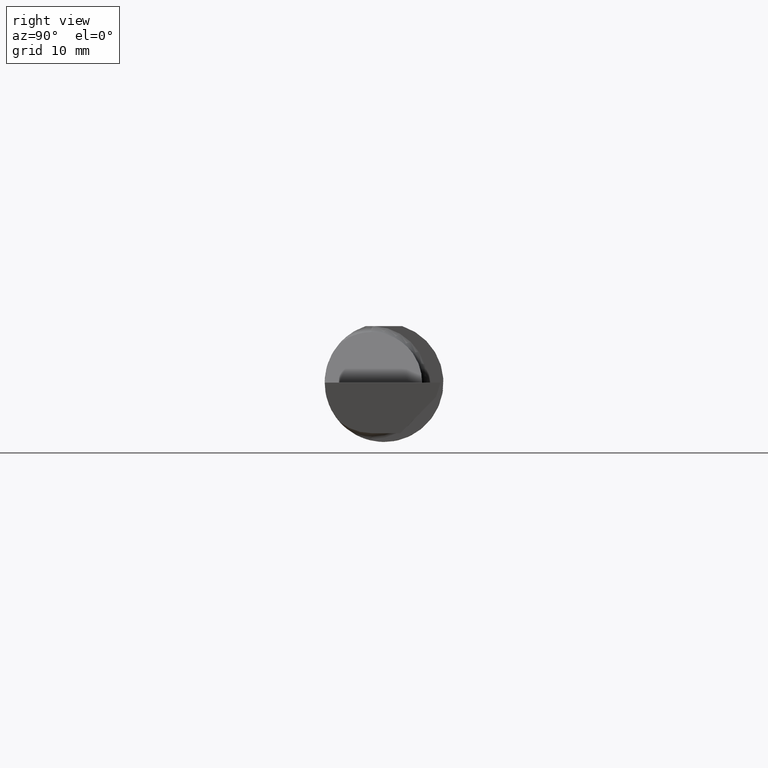
[diagram: clean part render]
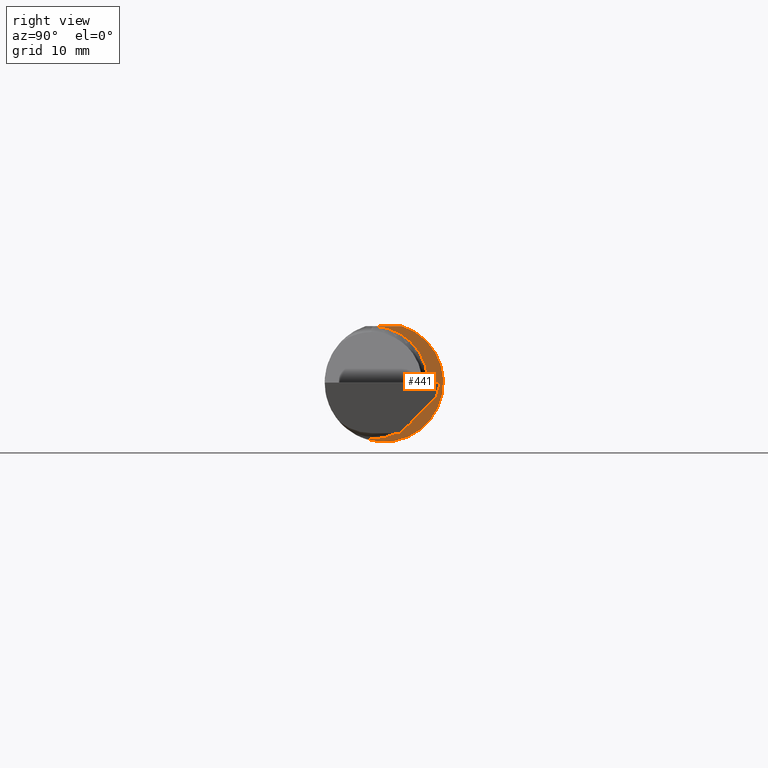
[diagram: same view with one face highlighted and labeled with its STEP entity id]
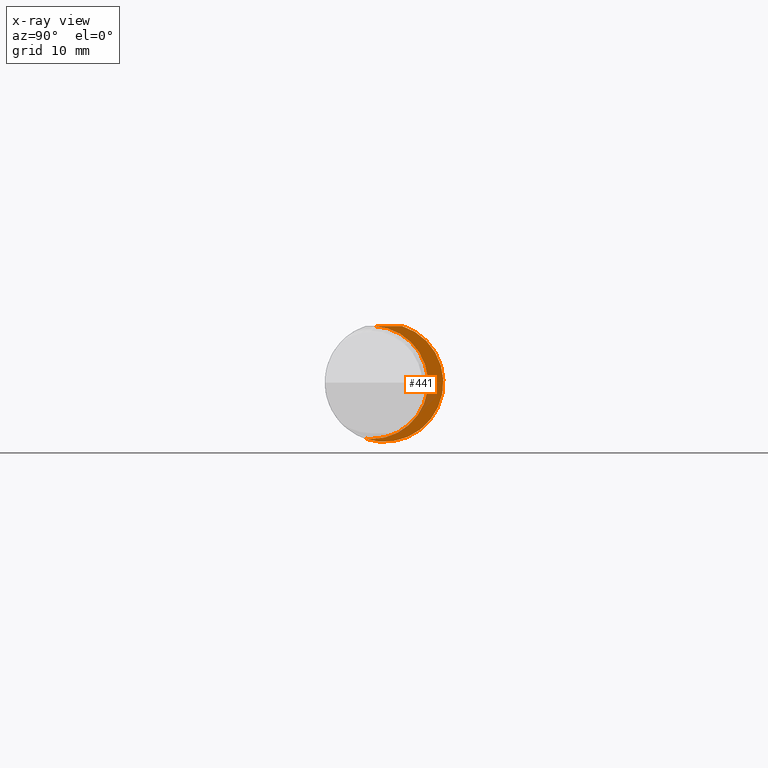
[diagram: x-ray of the same camera — body ghosted, the highlighted face saturated]
A machine part, right view. The second image highlights one B-rep face of the part: STEP entity #441.
The next image is the same camera in x-ray: the body ghosted, the highlighted face saturated — about 13% of this face is hidden behind the body in this view.
In plain terms, the highlighted planar face has unit normal (1, 0, 0).
Its self-contained STEP definition (entity closure, byte-faithful):
#7 = CARTESIAN_POINT ( 'NONE',  ( 2.200000000000000178, 0.07650098038587503646, 0.2378500000000000059 ) ) ;
#36 = CARTESIAN_POINT ( 'NONE',  ( 2.200000000000000178, 0.1851499999999999257, 0.0000000000000000000 ) ) ;
#41 = EDGE_CURVE ( 'NONE', #536, #362, #762, .T. ) ;
#47 = VECTOR ( 'NONE', #90, 39.37007874015748143 ) ;
#61 = CARTESIAN_POINT ( 'NONE',  ( 2.200000000000000178, -0.04105010460296977526, 0.2378500000000000059 ) ) ;
#63 = CIRCLE ( 'NONE', #76, 0.2381499999999999173 ) ;
#76 = AXIS2_PLACEMENT_3D ( 'NONE', #148, #576, #210 ) ;
#90 = DIRECTION ( 'NONE',  ( 0.0000000000000000000, -1.000000000000000000, 1.138839417068644240E-16 ) ) ;
#136 = VERTEX_POINT ( 'NONE', #625 ) ;
#148 = CARTESIAN_POINT ( 'NONE',  ( 2.200000000000000178, -0.05299999999999998462, 0.0000000000000000000 ) ) ;
#154 = EDGE_CURVE ( 'NONE', #136, #536, #63, .T. ) ;
#163 = DIRECTION ( 'NONE',  ( -1.000000000000000000, -0.0000000000000000000, -0.0000000000000000000 ) ) ;
#167 = EDGE_CURVE ( 'NONE', #362, #311, #489, .T. ) ;
#210 = DIRECTION ( 'NONE',  ( 0.0000000000000000000, 0.0000000000000000000, 1.000000000000000000 ) ) ;
#231 = ORIENTED_EDGE ( 'NONE', *, *, #41, .T. ) ;
#289 = DIRECTION ( 'NONE',  ( 0.0000000000000000000, 0.0000000000000000000, -1.000000000000000000 ) ) ;
#293 = DIRECTION ( 'NONE',  ( 1.000000000000000000, 0.0000000000000000000, 0.0000000000000000000 ) ) ;
#304 = ORIENTED_EDGE ( 'NONE', *, *, #428, .T. ) ;
#311 = VERTEX_POINT ( 'NONE', #61 ) ;
#342 = AXIS2_PLACEMENT_3D ( 'NONE', #521, #163, #589 ) ;
#362 = VERTEX_POINT ( 'NONE', #7 ) ;
#399 = CARTESIAN_POINT ( 'NONE',  ( 2.200000000000000178, -0.08036415094339657839, -0.2365726648265749632 ) ) ;
#428 = EDGE_CURVE ( 'NONE', #311, #136, #642, .T. ) ;
#441 = ADVANCED_FACE ( 'NONE', ( #474 ), #633, .T. ) ;
#456 = CARTESIAN_POINT ( 'NONE',  ( 2.200000000000000178, 0.2998500000000000609, 0.2378499999999999504 ) ) ;
#470 = AXIS2_PLACEMENT_3D ( 'NONE', #36, #635, #289 ) ;
#474 = FACE_OUTER_BOUND ( 'NONE', #600, .T. ) ;
#489 = LINE ( 'NONE', #456, #47 ) ;
#514 = AXIS2_PLACEMENT_3D ( 'NONE', #643, #293, #706 ) ;
#521 = CARTESIAN_POINT ( 'NONE',  ( 2.200000000000000178, -0.05299999999999998462, 0.0000000000000000000 ) ) ;
#536 = VERTEX_POINT ( 'NONE', #399 ) ;
#543 = ORIENTED_EDGE ( 'NONE', *, *, #167, .T. ) ;
#576 = DIRECTION ( 'NONE',  ( -1.000000000000000000, -0.0000000000000000000, -0.0000000000000000000 ) ) ;
#589 = DIRECTION ( 'NONE',  ( 0.0000000000000000000, 0.0000000000000000000, 1.000000000000000000 ) ) ;
#600 = EDGE_LOOP ( 'NONE', ( #231, #543, #304, #710 ) ) ;
#625 = CARTESIAN_POINT ( 'NONE',  ( 2.200000000000000178, -0.05299999999999996381, -0.2381499999999999173 ) ) ;
#633 = PLANE ( 'NONE',  #470 ) ;
#635 = DIRECTION ( 'NONE',  ( 1.000000000000000000, 0.0000000000000000000, 0.0000000000000000000 ) ) ;
#642 = CIRCLE ( 'NONE', #342, 0.2381499999999999173 ) ;
#643 = CARTESIAN_POINT ( 'NONE',  ( 2.200000000000000178, 0.0000000000000000000, 0.0000000000000000000 ) ) ;
#706 = DIRECTION ( 'NONE',  ( 0.0000000000000000000, 0.0000000000000000000, -1.000000000000000000 ) ) ;
#710 = ORIENTED_EDGE ( 'NONE', *, *, #154, .T. ) ;
#762 = CIRCLE ( 'NONE', #514, 0.2498499999999999888 ) ;